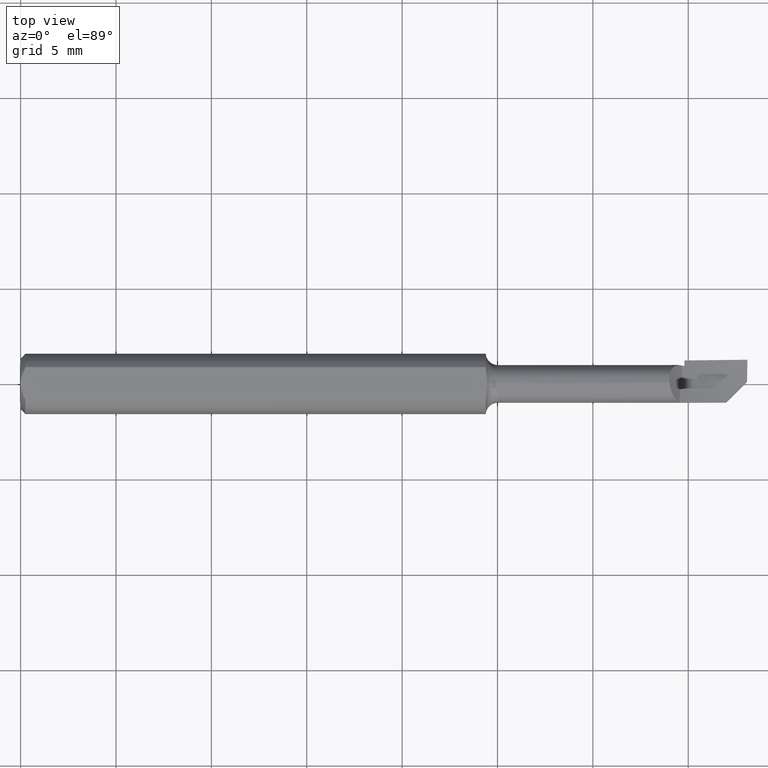
[diagram: clean part render]
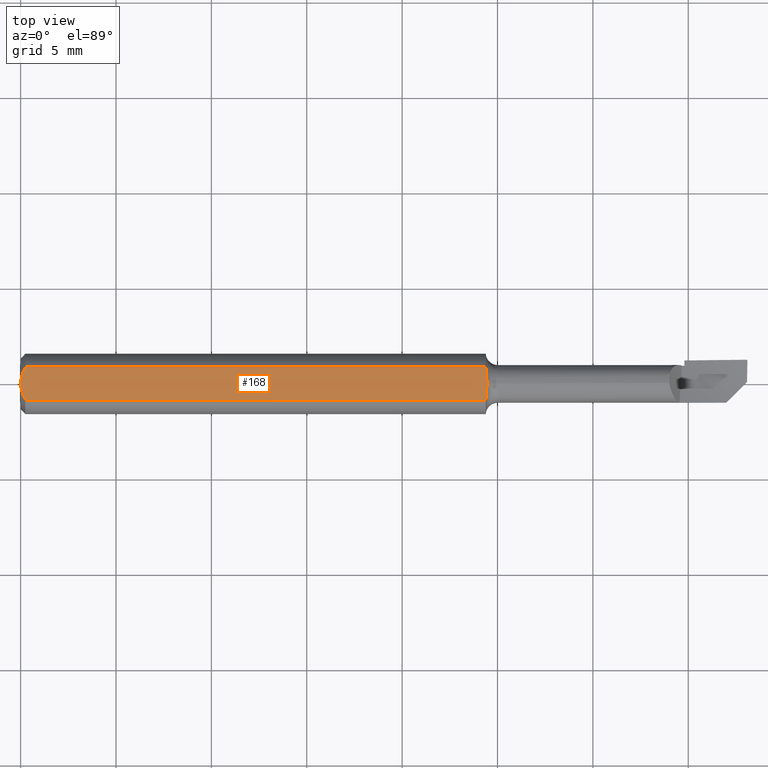
[diagram: same view with one face highlighted and labeled with its STEP entity id]
A machine part, top view. The second image highlights one B-rep face of the part: STEP entity #168.
In plain terms, the highlighted planar face has unit normal (0, -0, 1).
Its self-contained STEP definition (entity closure, byte-faithful):
#21 = CARTESIAN_POINT ( 'NONE',  ( 0.01000000000000000021, 0.03386738844375217911, 0.05234999999999997988 ) ) ;
#29 = CARTESIAN_POINT ( 'NONE',  ( 0.9602575845444997205, -0.02821516177202924164, 0.05234999999999998682 ) ) ;
#56 = CARTESIAN_POINT ( 'NONE',  ( 0.004671770759546980435, 0.02323517832780102113, 0.05234999999999997988 ) ) ;
#79 = CARTESIAN_POINT ( 'NONE',  ( 0.01000000000000000021, -0.03386738844375219298, 0.05234999999999997988 ) ) ;
#86 = CARTESIAN_POINT ( 'NONE',  ( 0.9609995429692419489, 0.02257840940120946910, 0.05234999999999997988 ) ) ;
#87 = B_SPLINE_CURVE_WITH_KNOTS ( 'NONE', 3,
 ( #479, #733, #56, #111, #674, #730 ),
 .UNSPECIFIED., .F., .F.,
 ( 4, 2, 4 ),
 ( 0.0009229516234080545421, 0.001371626545108214999, 0.001820301466808375672 ),
 .UNSPECIFIED. ) ;
#98 = CARTESIAN_POINT ( 'NONE',  ( 0.9600545094255498180, 0.03386738844375217911, 0.05234999999999997988 ) ) ;
#104 = VERTEX_POINT ( 'NONE', #694 ) ;
#111 = CARTESIAN_POINT ( 'NONE',  ( 0.001063697276021673783, 0.01189177144351694256, 0.05234999999999998682 ) ) ;
#118 = B_SPLINE_CURVE_WITH_KNOTS ( 'NONE', 3,
 ( #483, #374, #264, #758, #742, #79 ),
 .UNSPECIFIED., .F., .F.,
 ( 4, 2, 4 ),
 ( 0.001820301466808375672, 0.002269751589838321822, 0.002719201712868267538 ),
 .UNSPECIFIED. ) ;
#122 = EDGE_CURVE ( 'NONE', #312, #795, #473, .T. ) ;
#130 = VECTOR ( 'NONE', #577, 39.37007874015748143 ) ;
#131 = EDGE_LOOP ( 'NONE', ( #800, #749, #357, #609, #594, #525 ) ) ;
#168 = ADVANCED_FACE ( 'NONE', ( #280 ), #711, .T. ) ;
#190 = DIRECTION ( 'NONE',  ( 1.000000000000000000, 0.000000000000000000, 0.000000000000000000 ) ) ;
#202 = B_SPLINE_CURVE_WITH_KNOTS ( 'NONE', 3,
 ( #579, #651, #641, #721, #29, #397 ),
 .UNSPECIFIED., .F., .F.,
 ( 4, 2, 4 ),
 ( 2.418285421185417772E-20, 0.0004309660162680474223, 0.0008619320325360948446 ),
 .UNSPECIFIED. ) ;
#236 = EDGE_CURVE ( 'NONE', #104, #245, #328, .T. ) ;
#244 = DIRECTION ( 'NONE',  ( 0.000000000000000000, -1.000000000000000000, -1.036675771730518732E-16 ) ) ;
#245 = VERTEX_POINT ( 'NONE', #323 ) ;
#264 = CARTESIAN_POINT ( 'NONE',  ( 0.001055043921633259376, -0.01186408073210959077, 0.05234999999999997988 ) ) ;
#270 = VERTEX_POINT ( 'NONE', #21 ) ;
#280 = FACE_OUTER_BOUND ( 'NONE', #131, .T. ) ;
#285 = VERTEX_POINT ( 'NONE', #317 ) ;
#312 = VERTEX_POINT ( 'NONE', #98 ) ;
#317 = CARTESIAN_POINT ( 'NONE',  ( 0.000000000000000000, -5.426997665009263557E-18, 0.05234999999999997988 ) ) ;
#323 = CARTESIAN_POINT ( 'NONE',  ( 0.9600545094255498180, -0.03386738844375219298, 0.05234999999999997988 ) ) ;
#328 = LINE ( 'NONE', #624, #336 ) ;
#329 = CARTESIAN_POINT ( 'NONE',  ( 0.9623346093249585120, 0.01130850569651514759, 0.05234999999999998682 ) ) ;
#336 = VECTOR ( 'NONE', #190, 39.37007874015748143 ) ;
#338 = CARTESIAN_POINT ( 'NONE',  ( 0.9628803820105322764, 0.000000000000000000, 0.05234999999999997988 ) ) ;
#340 = CARTESIAN_POINT ( 'NONE',  ( 0.9628803820105322764, 0.005592841050896222438, 0.05234999999999998682 ) ) ;
#357 = ORIENTED_EDGE ( 'NONE', *, *, #236, .T. ) ;
#372 = EDGE_CURVE ( 'NONE', #795, #245, #202, .T. ) ;
#374 = CARTESIAN_POINT ( 'NONE',  ( -7.325417714211966649E-16, -0.005965286321680239069, 0.05234999999999997988 ) ) ;
#382 = CARTESIAN_POINT ( 'NONE',  ( 0.000000000000000000, 0.03386738844375217911, 0.05234999999999997988 ) ) ;
#385 = CARTESIAN_POINT ( 'NONE',  ( 0.9602577796674217625, 0.02820973088029196316, 0.05234999999999997988 ) ) ;
#386 = LINE ( 'NONE', #382, #130 ) ;
#397 = CARTESIAN_POINT ( 'NONE',  ( 0.9600545094255498180, -0.03386738844375219298, 0.05234999999999997988 ) ) ;
#473 = B_SPLINE_CURVE_WITH_KNOTS ( 'NONE', 3,
 ( #700, #385, #86, #329, #340, #586 ),
 .UNSPECIFIED., .F., .F.,
 ( 4, 2, 4 ),
 ( 0.007596176145298753554, 0.008022176448529757392, 0.008448176751760762965 ),
 .UNSPECIFIED. ) ;
#479 = CARTESIAN_POINT ( 'NONE',  ( 0.01000000000000000021, 0.03386738844375217911, 0.05234999999999997988 ) ) ;
#483 = CARTESIAN_POINT ( 'NONE',  ( 0.000000000000000000, -5.426997665009263557E-18, 0.05234999999999997988 ) ) ;
#486 = EDGE_CURVE ( 'NONE', #270, #285, #87, .T. ) ;
#500 = CARTESIAN_POINT ( 'NONE',  ( 1.500787401574803281, 0.08234999999999999265, 0.05234999999999998682 ) ) ;
#525 = ORIENTED_EDGE ( 'NONE', *, *, #792, .T. ) ;
#577 = DIRECTION ( 'NONE',  ( -1.000000000000000000, -0.000000000000000000, -0.000000000000000000 ) ) ;
#579 = CARTESIAN_POINT ( 'NONE',  ( 0.9628803820105322764, 0.000000000000000000, 0.05234999999999997988 ) ) ;
#586 = CARTESIAN_POINT ( 'NONE',  ( 0.9628803820105322764, 0.000000000000000000, 0.05234999999999997988 ) ) ;
#594 = ORIENTED_EDGE ( 'NONE', *, *, #122, .F. ) ;
#609 = ORIENTED_EDGE ( 'NONE', *, *, #372, .F. ) ;
#624 = CARTESIAN_POINT ( 'NONE',  ( 0.000000000000000000, -0.03386738844375219298, 0.05234999999999997988 ) ) ;
#641 = CARTESIAN_POINT ( 'NONE',  ( 0.9623355213809583475, -0.01130048628483170704, 0.05234999999999997988 ) ) ;
#646 = AXIS2_PLACEMENT_3D ( 'NONE', #500, #738, #244 ) ;
#651 = CARTESIAN_POINT ( 'NONE',  ( 0.9628803820105321654, -0.005658034534351287330, 0.05234999999999997988 ) ) ;
#661 = EDGE_CURVE ( 'NONE', #285, #104, #118, .T. ) ;
#674 = CARTESIAN_POINT ( 'NONE',  ( -7.517250668112770884E-16, 0.005954997531773981688, 0.05234999999999998682 ) ) ;
#694 = CARTESIAN_POINT ( 'NONE',  ( 0.01000000000000000021, -0.03386738844375219298, 0.05234999999999997988 ) ) ;
#700 = CARTESIAN_POINT ( 'NONE',  ( 0.9600545094255498180, 0.03386738844375217911, 0.05234999999999997988 ) ) ;
#711 = PLANE ( 'NONE',  #646 ) ;
#721 = CARTESIAN_POINT ( 'NONE',  ( 0.9609995881363403436, -0.02257834822700160657, 0.05234999999999998682 ) ) ;
#730 = CARTESIAN_POINT ( 'NONE',  ( 0.000000000000000000, -5.426997665009263557E-18, 0.05234999999999997988 ) ) ;
#733 = CARTESIAN_POINT ( 'NONE',  ( 0.007185421074056353059, 0.02868573718286557619, 0.05234999999999997988 ) ) ;
#738 = DIRECTION ( 'NONE',  ( 0.000000000000000000, -1.036675771730518732E-16, 1.000000000000000000 ) ) ;
#742 = CARTESIAN_POINT ( 'NONE',  ( 0.007163450771350544227, -0.02864528976618612235, 0.05234999999999998682 ) ) ;
#749 = ORIENTED_EDGE ( 'NONE', *, *, #661, .T. ) ;
#758 = CARTESIAN_POINT ( 'NONE',  ( 0.004679365186781217663, -0.02325953974079653444, 0.05234999999999998682 ) ) ;
#792 = EDGE_CURVE ( 'NONE', #312, #270, #386, .T. ) ;
#795 = VERTEX_POINT ( 'NONE', #338 ) ;
#800 = ORIENTED_EDGE ( 'NONE', *, *, #486, .T. ) ;